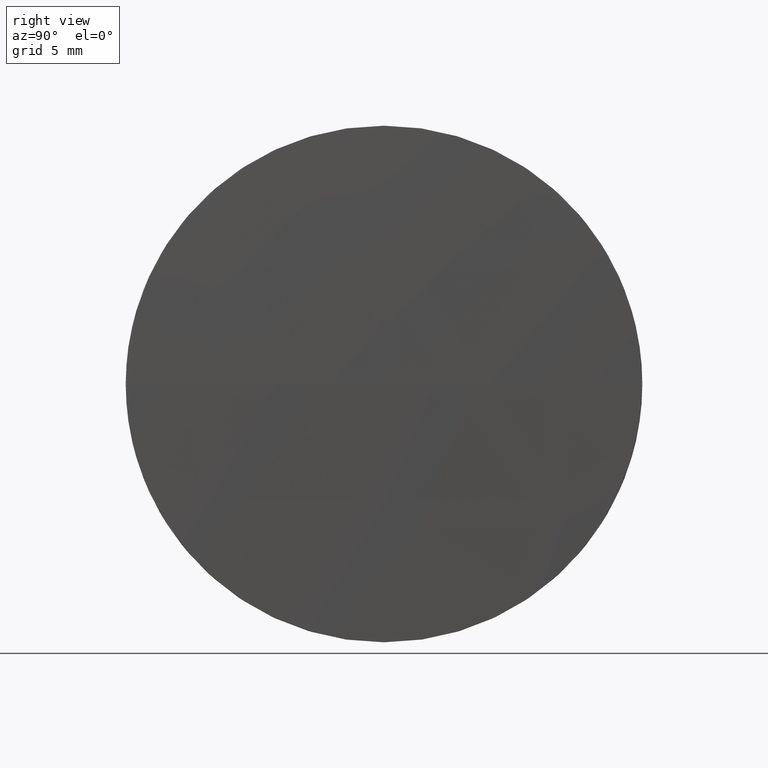
[diagram: clean part render]
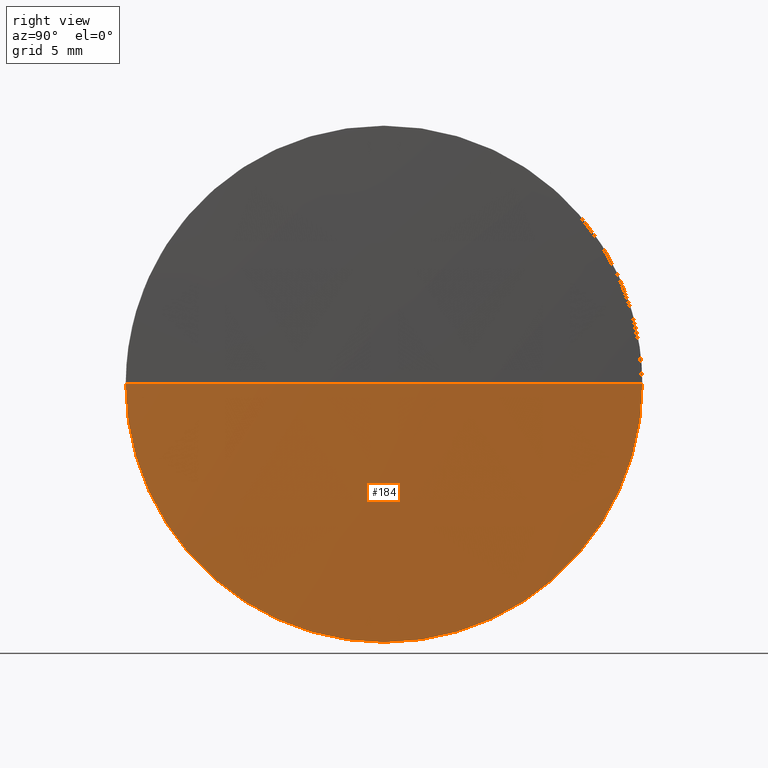
[diagram: same view with one face highlighted and labeled with its STEP entity id]
A machine part, right view. The second image highlights one B-rep face of the part: STEP entity #184.
In plain terms, the highlighted spherical surface has radius 390.725 mm.
Its self-contained STEP definition (entity closure, byte-faithful):
#3 = ORIENTED_EDGE ( 'NONE', *, *, #62, .T. ) ;
#6 = CARTESIAN_POINT ( 'NONE',  ( 410.3943879828856300, 138.7827390996668800, 0.0000000000000000000 ) ) ;
#7 = CARTESIAN_POINT ( 'NONE',  ( 410.3943879828856300, 113.7827390996670000, -1.530808498934166900E-015 ) ) ;
#9 = CARTESIAN_POINT ( 'NONE',  ( 410.3943879828856900, 126.2827390996670800, -12.50000000000001100 ) ) ;
#10 = FACE_OUTER_BOUND ( 'NONE', #111, .T. ) ;
#12 = DIRECTION ( 'NONE',  ( 0.0000000000000000000, 0.0000000000000000000, 1.000000000000000000 ) ) ;
#18 = ORIENTED_EDGE ( 'NONE', *, *, #97, .F. ) ;
#23 = CARTESIAN_POINT ( 'NONE',  ( 19.86938798288417700, 126.2827390996668100, 0.0000000000000000000 ) ) ;
#30 = AXIS2_PLACEMENT_3D ( 'NONE', #147, #106, #12 ) ;
#32 = AXIS2_PLACEMENT_3D ( 'NONE', #84, #46, #72 ) ;
#38 = CARTESIAN_POINT ( 'NONE',  ( 19.86938798288417700, 126.2827390996668100, 0.0000000000000000000 ) ) ;
#39 = AXIS2_PLACEMENT_3D ( 'NONE', #23, #73, #56 ) ;
#42 = AXIS2_PLACEMENT_3D ( 'NONE', #156, #169, #182 ) ;
#43 = CIRCLE ( 'NONE', #42, 12.50000000000001100 ) ;
#44 = VERTEX_POINT ( 'NONE', #9 ) ;
#46 = DIRECTION ( 'NONE',  ( -0.0000000000000000000, 0.0000000000000000000, -1.000000000000000000 ) ) ;
#56 = DIRECTION ( 'NONE',  ( 1.000000000000000000, 0.0000000000000000000, 0.0000000000000000000 ) ) ;
#59 = CARTESIAN_POINT ( 'NONE',  ( 410.5943879828856800, 126.2827390996668400, 0.0000000000000000000 ) ) ;
#62 = EDGE_CURVE ( 'NONE', #130, #94, #157, .T. ) ;
#68 = DIRECTION ( 'NONE',  ( 0.0000000000000000000, 1.000000000000000000, 1.224646799147353000E-016 ) ) ;
#72 = DIRECTION ( 'NONE',  ( 0.0000000000000000000, 1.000000000000000000, 0.0000000000000000000 ) ) ;
#73 = DIRECTION ( 'NONE',  ( -0.0000000000000000000, 0.0000000000000000000, 1.000000000000000000 ) ) ;
#75 = AXIS2_PLACEMENT_3D ( 'NONE', #38, #180, #68 ) ;
#79 = ORIENTED_EDGE ( 'NONE', *, *, #113, .F. ) ;
#84 = CARTESIAN_POINT ( 'NONE',  ( 19.86938798288417700, 126.2827390996668100, 0.0000000000000000000 ) ) ;
#94 = VERTEX_POINT ( 'NONE', #7 ) ;
#97 = EDGE_CURVE ( 'NONE', #44, #94, #43, .T. ) ;
#102 = EDGE_CURVE ( 'NONE', #166, #44, #150, .T. ) ;
#105 = CIRCLE ( 'NONE', #39, 390.7250000000015000 ) ;
#106 = DIRECTION ( 'NONE',  ( -1.000000000000000000, -0.0000000000000000000, -0.0000000000000000000 ) ) ;
#111 = EDGE_LOOP ( 'NONE', ( #79, #3, #18, #153 ) ) ;
#113 = EDGE_CURVE ( 'NONE', #130, #166, #105, .T. ) ;
#130 = VERTEX_POINT ( 'NONE', #59 ) ;
#147 = CARTESIAN_POINT ( 'NONE',  ( 410.3943879828856900, 126.2827390996670800, 0.0000000000000000000 ) ) ;
#150 = CIRCLE ( 'NONE', #30, 12.50000000000001100 ) ;
#152 = SPHERICAL_SURFACE ( 'NONE', #32, 390.7250000000015000 ) ;
#153 = ORIENTED_EDGE ( 'NONE', *, *, #102, .F. ) ;
#156 = CARTESIAN_POINT ( 'NONE',  ( 410.3943879828856900, 126.2827390996670800, 0.0000000000000000000 ) ) ;
#157 = CIRCLE ( 'NONE', #75, 390.7250000000015600 ) ;
#166 = VERTEX_POINT ( 'NONE', #6 ) ;
#169 = DIRECTION ( 'NONE',  ( -1.000000000000000000, -0.0000000000000000000, -0.0000000000000000000 ) ) ;
#180 = DIRECTION ( 'NONE',  ( 0.0000000000000000000, 1.224646799147353200E-016, -1.000000000000000000 ) ) ;
#182 = DIRECTION ( 'NONE',  ( 0.0000000000000000000, 0.0000000000000000000, 1.000000000000000000 ) ) ;
#184 = ADVANCED_FACE ( 'NONE', ( #10 ), #152, .T. ) ;